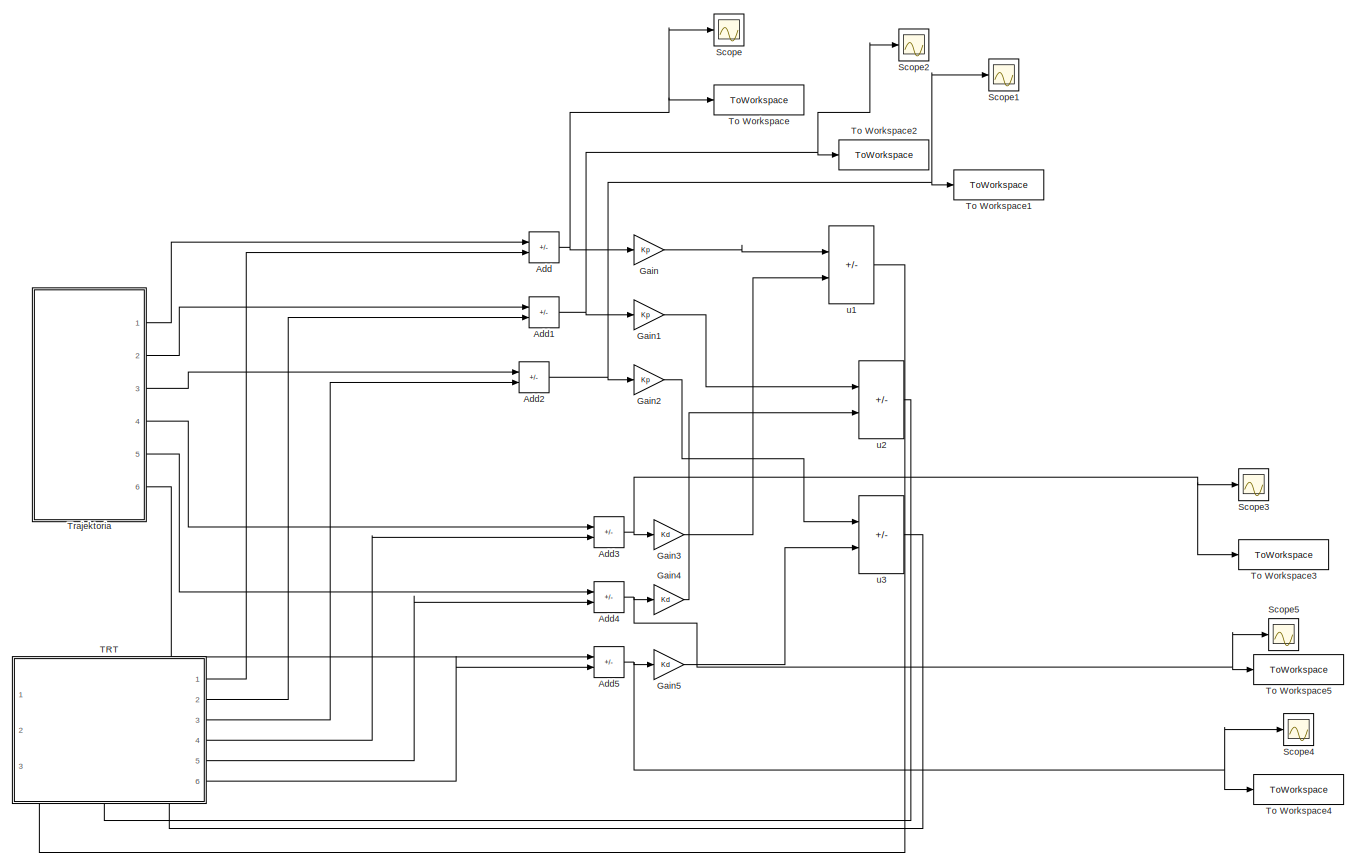
[diagram: root canvas - part 1/1, most of the canvas]
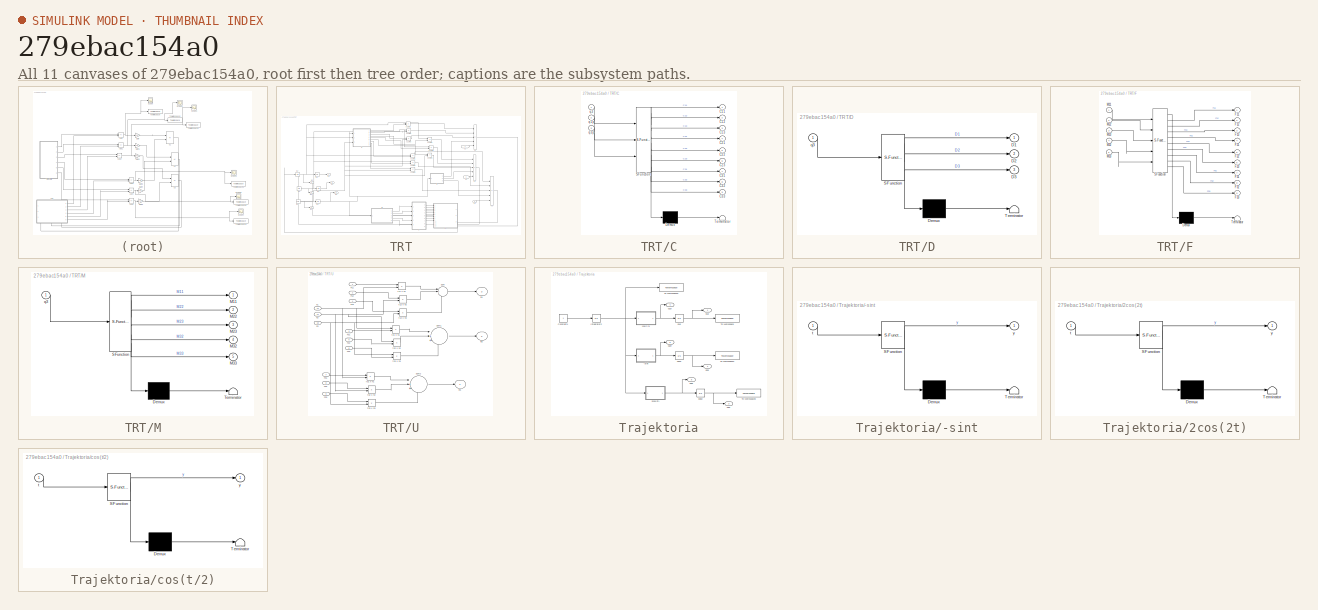
[diagram: thumbnail index - all 11 canvases of the model, root first then tree order]
MODEL slx_279ebac154a0
KIND model
CONFIG AbsTol = auto
CONFIG EnableMultiTasking = off
CONFIG FixedStep = auto
CONFIG MaxStep = auto
CONFIG MinStep = auto
CONFIG RelTol = 1e-10
CONFIG SampleTimeConstraint = Unconstrained
CONFIG SolverName = ode45
CONFIG StartTime = 0.0
CONFIG StopTime = t_stop
BLOCK [Sum] Add
  IconShape = rectangular
  Inputs = -+
  Ports = [2, 1]
BLOCK [Sum] Add1
  IconShape = rectangular
  Inputs = -+
  Ports = [2, 1]
BLOCK [Sum] Add2
  IconShape = rectangular
  Inputs = -+
  Ports = [2, 1]
BLOCK [Sum] Add3
  IconShape = rectangular
  Inputs = -+
  Ports = [2, 1]
BLOCK [Sum] Add4
  IconShape = rectangular
  Inputs = -+
  Ports = [2, 1]
BLOCK [Sum] Add5
  IconShape = rectangular
  Inputs = -+
  Ports = [2, 1]
BLOCK [Gain] Gain
  Gain = Kp
BLOCK [Gain] Gain1
  Gain = Kp
BLOCK [Gain] Gain2
  Gain = Kp
BLOCK [Gain] Gain3
  Gain = Kd
BLOCK [Gain] Gain4
  Gain = Kd
BLOCK [Gain] Gain5
  Gain = Kd
BLOCK [Scope] Scope
  Floating = off
  NumInputPorts = 1
  Ports = [1]
  ScopeSpecificationString = Simulink.scopes.TimeScopeBlockCfg('CurrentConfiguration', extmgr.ConfigurationSet(extmgr.Configuration('Core','General UI',true),extmgr.Configuration('Core','Source UI',true),extmgr.Configuration('Sources','WiredSimulink',true),extmgr.Configuration('Visuals','Time Domain',true,'SerializedDisplays',{struct('MinYLimReal','-0.25002','MaxYLimReal','2.25','YLabelReal','','MinYLimMag','0.00000','MaxYLim...<+1311ch>
BLOCK [Scope] Scope1
  Floating = off
  NumInputPorts = 1
  Ports = [1]
  ScopeSpecificationString = Simulink.scopes.TimeScopeBlockCfg('CurrentConfiguration', extmgr.ConfigurationSet(extmgr.Configuration('Core','General UI',true),extmgr.Configuration('Core','Source UI',true),extmgr.Configuration('Sources','WiredSimulink',true,'DataLoggingVariableName','ScopeData1'),extmgr.Configuration('Visuals','Time Domain',true,'SerializedDisplays',{struct('MinYLimReal','-0.25023','MaxYLimReal','2.25003','YLab...<+1363ch>
BLOCK [Scope] Scope2
  Floating = off
  NumInputPorts = 1
  Ports = [1]
  ScopeSpecificationString = Simulink.scopes.TimeScopeBlockCfg('CurrentConfiguration', extmgr.ConfigurationSet(extmgr.Configuration('Core','General UI',true),extmgr.Configuration('Core','Source UI',true),extmgr.Configuration('Sources','WiredSimulink',true,'DataLoggingVariableName','ScopeData2'),extmgr.Configuration('Visuals','Time Domain',true,'SerializedDisplays',{struct('MinYLimReal','-2.24961','MaxYLimReal','0.24648','YLab...<+1363ch>
BLOCK [Scope] Scope3
  Floating = off
  NumInputPorts = 1
  Ports = [1]
  ScopeSpecificationString = Simulink.scopes.TimeScopeBlockCfg('CurrentConfiguration', extmgr.ConfigurationSet(extmgr.Configuration('Core','General UI',true),extmgr.Configuration('Core','Source UI',true),extmgr.Configuration('Sources','WiredSimulink',true,'DataLoggingVariableName','ScopeData1'),extmgr.Configuration('Visuals','Time Domain',true,'SerializedDisplays',{struct('MinYLimReal','-18.44832','MaxYLimReal','2.05074','YLa...<+1367ch>
BLOCK [Scope] Scope4
  Floating = off
  NumInputPorts = 1
  Ports = [1]
  ScopeSpecificationString = Simulink.scopes.TimeScopeBlockCfg('CurrentConfiguration', extmgr.ConfigurationSet(extmgr.Configuration('Core','General UI',true),extmgr.Configuration('Core','Source UI',true),extmgr.Configuration('Sources','WiredSimulink',true,'DataLoggingVariableName','ScopeData2'),extmgr.Configuration('Visuals','Time Domain',true,'SerializedDisplays',{struct('MinYLimReal','-21.82569','MaxYLimReal','2.44479','YLa...<+1367ch>
BLOCK [Scope] Scope5
  Floating = off
  NumInputPorts = 1
  Ports = [1]
  ScopeSpecificationString = Simulink.scopes.TimeScopeBlockCfg('CurrentConfiguration', extmgr.ConfigurationSet(extmgr.Configuration('Core','General UI',true),extmgr.Configuration('Core','Source UI',true),extmgr.Configuration('Sources','WiredSimulink',true,'DataLoggingVariableName','ScopeData3'),extmgr.Configuration('Visuals','Time Domain',true,'SerializedDisplays',{struct('MinYLimReal','-11.27591','MaxYLimReal','4.52788','YLa...<+1367ch>
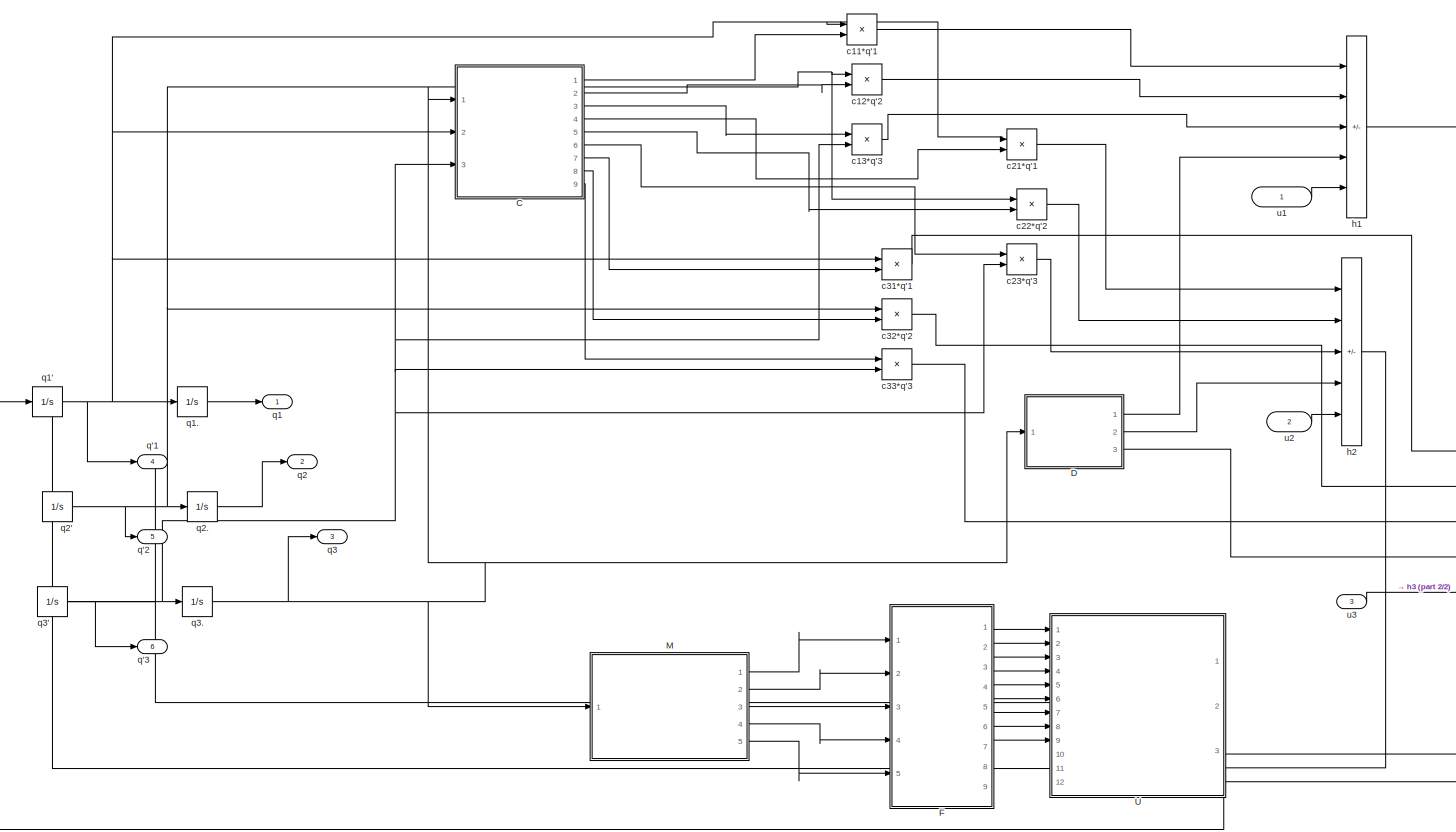
[diagram: TRT - part 1/2, most of the canvas]
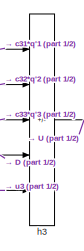
[diagram: TRT - part 2/2, middle right region]
BLOCK [SubSystem] TRT
  PortSchema = {"entries":[{"content":{"sides":[{"content":{"connectorIds":[]},"type":"ConnectorPlacement.EquallySpacedRectSide","uuid":"a13a475c-743e-4b68-af9c-5e746e266b9c"},{"content":{"connectorIds":["Out1","Out2","Out3","Out4","Out5","Out6"],"side":"RIGHT"},"type":"ConnectorPlacement.EquallySpacedRectSide","uuid":"c38df9ec-cc79-4f7b-9920-87d5ccf64580"},{"content":{"connectorIds":[],"side":"TOP"},"type":"Con...<+431ch>
  Ports = [3, 6]
  RequestExecContextInheritance = off
BLOCK [SubSystem] TRT/C
  ErrorFcn = Stateflow.Translate.translate
  PermitHierarchicalResolution = ExplicitOnly
  Ports = [3, 9]
  RequestExecContextInheritance = off
  SFBlockType = MATLAB Function
  TreatAsAtomicUnit = on
BLOCK [Demux] TRT/C/ Demux 
  Outputs = 1
  Ports = [1, 1]
BLOCK [S-Function] TRT/C/ SFunction 
  EnableBusSupport = on
  FunctionName = sf_sfun
  Parameters = l2,l3,m3
  PortCounts = [3 10]
  Ports = [3, 10]
  SFcnIsStateOwnerBlock = off
  SFunctionDeploymentMode = off
  Tag = Stateflow S-Function 3
BLOCK [Terminator] TRT/C/ Terminator 
BLOCK [Outport] TRT/C/C11
BLOCK [Outport] TRT/C/C12
  Port = 2
BLOCK [Outport] TRT/C/C13
  Port = 3
BLOCK [Outport] TRT/C/C21
  Port = 4
BLOCK [Outport] TRT/C/C22
  Port = 5
BLOCK [Outport] TRT/C/C23
  Port = 6
BLOCK [Outport] TRT/C/C31
  Port = 7
BLOCK [Outport] TRT/C/C32
  Port = 8
BLOCK [Outport] TRT/C/C33
  Port = 9
BLOCK [Inport] TRT/C/q1p
  Port = 2
BLOCK [Inport] TRT/C/q3
BLOCK [Inport] TRT/C/q3p
  Port = 3
BLOCK [SubSystem] TRT/D
  ErrorFcn = Stateflow.Translate.translate
  PermitHierarchicalResolution = ExplicitOnly
  Ports = [1, 3]
  RequestExecContextInheritance = off
  SFBlockType = MATLAB Function
  TreatAsAtomicUnit = on
BLOCK [Demux] TRT/D/ Demux 
  Outputs = 1
  Ports = [1, 1]
BLOCK [S-Function] TRT/D/ SFunction 
  EnableBusSupport = on
  FunctionName = sf_sfun
  Parameters = g,l3,m2,m3
  PortCounts = [1 4]
  Ports = [1, 4]
  SFcnIsStateOwnerBlock = off
  SFunctionDeploymentMode = off
  Tag = Stateflow S-Function 4
BLOCK [Terminator] TRT/D/ Terminator 
BLOCK [Outport] TRT/D/D1
BLOCK [Outport] TRT/D/D2
  Port = 2
BLOCK [Outport] TRT/D/D3
  Port = 3
BLOCK [Inport] TRT/D/q3
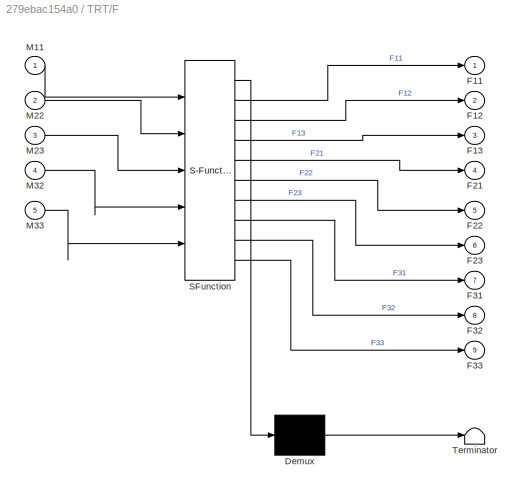
BLOCK [SubSystem] TRT/F
  ErrorFcn = Stateflow.Translate.translate
  PermitHierarchicalResolution = ExplicitOnly
  Ports = [5, 9]
  RequestExecContextInheritance = off
  SFBlockType = MATLAB Function
  TreatAsAtomicUnit = on
BLOCK [Demux] TRT/F/ Demux 
  Outputs = 1
  Ports = [1, 1]
BLOCK [S-Function] TRT/F/ SFunction 
  EnableBusSupport = on
  FunctionName = sf_sfun
  PortCounts = [5 10]
  Ports = [5, 10]
  SFcnIsStateOwnerBlock = off
  SFunctionDeploymentMode = off
  Tag = Stateflow S-Function 7
BLOCK [Terminator] TRT/F/ Terminator 
BLOCK [Outport] TRT/F/F11
BLOCK [Outport] TRT/F/F12
  Port = 2
BLOCK [Outport] TRT/F/F13
  Port = 3
BLOCK [Outport] TRT/F/F21
  Port = 4
BLOCK [Outport] TRT/F/F22
  Port = 5
BLOCK [Outport] TRT/F/F23
  Port = 6
BLOCK [Outport] TRT/F/F31
  Port = 7
BLOCK [Outport] TRT/F/F32
  Port = 8
BLOCK [Outport] TRT/F/F33
  Port = 9
BLOCK [Inport] TRT/F/M11
BLOCK [Inport] TRT/F/M22
  Port = 2
BLOCK [Inport] TRT/F/M23
  Port = 3
BLOCK [Inport] TRT/F/M32
  Port = 4
BLOCK [Inport] TRT/F/M33
  Port = 5
BLOCK [SubSystem] TRT/M
  ErrorFcn = Stateflow.Translate.translate
  PermitHierarchicalResolution = ExplicitOnly
  Ports = [1, 5]
  RequestExecContextInheritance = off
  SFBlockType = MATLAB Function
  TreatAsAtomicUnit = on
BLOCK [Demux] TRT/M/ Demux 
  Outputs = 1
  Ports = [1, 1]
BLOCK [S-Function] TRT/M/ SFunction 
  EnableBusSupport = on
  FunctionName = sf_sfun
  Parameters = l2,l3,m2,m3
  PortCounts = [1 6]
  Ports = [1, 6]
  SFcnIsStateOwnerBlock = off
  SFunctionDeploymentMode = off
  Tag = Stateflow S-Function 2
BLOCK [Terminator] TRT/M/ Terminator 
BLOCK [Outport] TRT/M/M11
BLOCK [Outport] TRT/M/M22
  Port = 2
BLOCK [Outport] TRT/M/M23
  Port = 3
BLOCK [Outport] TRT/M/M32
  Port = 4
BLOCK [Outport] TRT/M/M33
  Port = 5
BLOCK [Inport] TRT/M/q3
BLOCK [SubSystem] TRT/U
  PortSchema = {"entries":[{"content":{"sides":[{"content":{"connectorIds":["In1","In2","In3","In4","In5","In6","In7","In8","In9"]},"type":"ConnectorPlacement.EquallySpacedRectSide","uuid":"30710644-9e06-400a-91a1-da9eb46b634c"},{"content":{"connectorIds":["In10","In11","In12"],"side":"RIGHT"},"type":"ConnectorPlacement.EquallySpacedRectSide","uuid":"450ad47e-e867-455a-81bd-6c2cfcae7014"},{"content":{"connectorI...<+466ch>
  Ports = [12, 3]
  RequestExecContextInheritance = off
BLOCK [Inport] TRT/U/F11
BLOCK [Inport] TRT/U/F12
  Port = 2
BLOCK [Inport] TRT/U/F13
  Port = 4
BLOCK [Inport] TRT/U/F21
  Port = 3
BLOCK [Inport] TRT/U/F22
  Port = 5
BLOCK [Inport] TRT/U/F23
  Port = 6
BLOCK [Inport] TRT/U/F31
  Port = 7
BLOCK [Inport] TRT/U/F32
  Port = 8
BLOCK [Inport] TRT/U/F33
  Port = 9
BLOCK [Sum] TRT/U/Sum
  Inputs = |+++
  Ports = [3, 1]
BLOCK [Sum] TRT/U/Sum1
  Inputs = |+++
  Ports = [3, 1]
BLOCK [Sum] TRT/U/Sum2
  Inputs = |+++
  Ports = [3, 1]
BLOCK [Product] TRT/U/f11 x h1
  Ports = [2, 1]
BLOCK [Product] TRT/U/f12 x h2
  Ports = [2, 1]
BLOCK [Product] TRT/U/f13 x h3
  Ports = [2, 1]
BLOCK [Product] TRT/U/f21 x h1
  Ports = [2, 1]
BLOCK [Product] TRT/U/f22 x h2
  Ports = [2, 1]
BLOCK [Product] TRT/U/f23 x h3
  Ports = [2, 1]
BLOCK [Product] TRT/U/f31 x h1
  Ports = [2, 1]
BLOCK [Product] TRT/U/f32 x h2
  Ports = [2, 1]
BLOCK [Product] TRT/U/f33 x h3
  Ports = [2, 1]
BLOCK [Inport] TRT/U/h1
  Port = 12
BLOCK [Inport] TRT/U/h2
  Port = 11
BLOCK [Inport] TRT/U/h3
  Port = 10
BLOCK [Outport] TRT/U/in1
  Port = 3
BLOCK [Outport] TRT/U/in2
  Port = 2
BLOCK [Outport] TRT/U/in3
BLOCK [Product] TRT/c11*q'1
  Ports = [2, 1]
BLOCK [Product] TRT/c12*q'2
  Ports = [2, 1]
BLOCK [Product] TRT/c13*q'3
  Ports = [2, 1]
BLOCK [Product] TRT/c21*q'1
  Ports = [2, 1]
BLOCK [Product] TRT/c22*q'2
  Ports = [2, 1]
BLOCK [Product] TRT/c23*q'3
  Ports = [2, 1]
BLOCK [Product] TRT/c31*q'1
  Ports = [2, 1]
BLOCK [Product] TRT/c32*q'2
  Ports = [2, 1]
BLOCK [Product] TRT/c33*q'3
  Ports = [2, 1]
BLOCK [Sum] TRT/h1
  IconShape = rectangular
  Inputs = ----+
  Ports = [5, 1]
BLOCK [Sum] TRT/h2
  IconShape = rectangular
  Inputs = ----+
  Ports = [5, 1]
BLOCK [Sum] TRT/h3
  IconShape = rectangular
  Inputs = ----+
  Ports = [5, 1]
BLOCK [Outport] TRT/q'1
  Port = 4
BLOCK [Outport] TRT/q'2
  Port = 5
BLOCK [Outport] TRT/q'3
  Port = 6
BLOCK [Outport] TRT/q1
BLOCK [Integrator] TRT/q1'
  InitialCondition = q1p_0
  Ports = [1, 1]
BLOCK [Integrator] TRT/q1.
  InitialCondition = q1_0
  Ports = [1, 1]
BLOCK [Outport] TRT/q2
  Port = 2
BLOCK [Integrator] TRT/q2'
  InitialCondition = q2p_0
  Ports = [1, 1]
BLOCK [Integrator] TRT/q2.
  InitialCondition = q2_0
  Ports = [1, 1]
BLOCK [Outport] TRT/q3
  Port = 3
BLOCK [Integrator] TRT/q3'
  InitialCondition = q3p_0
  Ports = [1, 1]
BLOCK [Integrator] TRT/q3.
  InitialCondition = q3_0
  Ports = [1, 1]
BLOCK [Inport] TRT/u1
BLOCK [Inport] TRT/u2
  Port = 2
BLOCK [Inport] TRT/u3
  Port = 3
BLOCK [ToWorkspace] To Workspace
  FixptAsFi = on
  MaxDataPoints = inf
  Ports = [1]
  SampleTime = -1
  VariableName = e1
BLOCK [ToWorkspace] To Workspace1
  FixptAsFi = on
  MaxDataPoints = inf
  Ports = [1]
  SampleTime = -1
  VariableName = e3
BLOCK [ToWorkspace] To Workspace2
  FixptAsFi = on
  MaxDataPoints = inf
  Ports = [1]
  SampleTime = -1
  VariableName = e2
BLOCK [ToWorkspace] To Workspace3
  FixptAsFi = on
  MaxDataPoints = inf
  Ports = [1]
  SampleTime = -1
  VariableName = e1p
BLOCK [ToWorkspace] To Workspace4
  FixptAsFi = on
  MaxDataPoints = inf
  Ports = [1]
  SampleTime = -1
  VariableName = e3p
BLOCK [ToWorkspace] To Workspace5
  FixptAsFi = on
  MaxDataPoints = inf
  Ports = [1]
  SampleTime = -1
  VariableName = e2p
BLOCK [SubSystem] Trajektoria
  Ports = [0, 6]
  RequestExecContextInheritance = off
BLOCK [Integrator] Trajektoria/ q1d
  InitialCondition = q1d_0
  Ports = [1, 1]
BLOCK [Integrator] Trajektoria/ q2d1
  InitialCondition = q2d_0
  Ports = [1, 1]
BLOCK [Integrator] Trajektoria/ q3d2
  InitialCondition = q3d_0
  Ports = [1, 1]
BLOCK [SubSystem] Trajektoria/-sint
  ErrorFcn = Stateflow.Translate.translate
  PermitHierarchicalResolution = ExplicitOnly
  Ports = [1, 1]
  RequestExecContextInheritance = off
  SFBlockType = MATLAB Function
  TreatAsAtomicUnit = on
BLOCK [Demux] Trajektoria/-sint/ Demux 
  Outputs = 1
  Ports = [1, 1]
BLOCK [S-Function] Trajektoria/-sint/ SFunction 
  EnableBusSupport = on
  FunctionName = sf_sfun
  PortCounts = [1 2]
  Ports = [1, 2]
  SFcnIsStateOwnerBlock = off
  SFunctionDeploymentMode = off
  Tag = Stateflow S-Function 6
BLOCK [Terminator] Trajektoria/-sint/ Terminator 
BLOCK [Inport] Trajektoria/-sint/t
BLOCK [Outport] Trajektoria/-sint/y
BLOCK [SubSystem] Trajektoria/2cos(2t)
  ErrorFcn = Stateflow.Translate.translate
  PermitHierarchicalResolution = ExplicitOnly
  Ports = [1, 1]
  RequestExecContextInheritance = off
  SFBlockType = MATLAB Function
  TreatAsAtomicUnit = on
BLOCK [Demux] Trajektoria/2cos(2t)/ Demux 
  Outputs = 1
  Ports = [1, 1]
BLOCK [S-Function] Trajektoria/2cos(2t)/ SFunction 
  EnableBusSupport = on
  FunctionName = sf_sfun
  PortCounts = [1 2]
  Ports = [1, 2]
  SFcnIsStateOwnerBlock = off
  SFunctionDeploymentMode = off
  Tag = Stateflow S-Function 1
BLOCK [Terminator] Trajektoria/2cos(2t)/ Terminator 
BLOCK [Inport] Trajektoria/2cos(2t)/t
BLOCK [Outport] Trajektoria/2cos(2t)/y
BLOCK [Constant] Trajektoria/Constant1
BLOCK [Integrator] Trajektoria/Integrator2
  Ports = [1, 1]
BLOCK [ToWorkspace] Trajektoria/To Workspace
  FixptAsFi = on
  MaxDataPoints = inf
  Ports = [1]
  SampleTime = -1
  VariableName = q1ds
BLOCK [ToWorkspace] Trajektoria/To Workspace1
  FixptAsFi = on
  MaxDataPoints = inf
  Ports = [1]
  SampleTime = -1
  VariableName = q2ds
BLOCK [ToWorkspace] Trajektoria/To Workspace2
  FixptAsFi = on
  MaxDataPoints = inf
  Ports = [1]
  SampleTime = -1
  VariableName = t
BLOCK [ToWorkspace] Trajektoria/To Workspace3
  FixptAsFi = on
  MaxDataPoints = inf
  Ports = [1]
  SampleTime = -1
  VariableName = q3ds
BLOCK [SubSystem] Trajektoria/cos(t//2)
  ErrorFcn = Stateflow.Translate.translate
  PermitHierarchicalResolution = ExplicitOnly
  Ports = [1, 1]
  RequestExecContextInheritance = off
  SFBlockType = MATLAB Function
  TreatAsAtomicUnit = on
BLOCK [Demux] Trajektoria/cos(t//2)/ Demux 
  Outputs = 1
  Ports = [1, 1]
BLOCK [S-Function] Trajektoria/cos(t//2)/ SFunction 
  EnableBusSupport = on
  FunctionName = sf_sfun
  PortCounts = [1 2]
  Ports = [1, 2]
  SFcnIsStateOwnerBlock = off
  SFunctionDeploymentMode = off
  Tag = Stateflow S-Function 5
BLOCK [Terminator] Trajektoria/cos(t//2)/ Terminator 
BLOCK [Inport] Trajektoria/cos(t//2)/t
BLOCK [Outport] Trajektoria/cos(t//2)/y
BLOCK [Outport] Trajektoria/q1d
BLOCK [Outport] Trajektoria/q1d'
  Port = 4
BLOCK [Outport] Trajektoria/q2d
  Port = 2
BLOCK [Outport] Trajektoria/q2d'
  Port = 5
BLOCK [Outport] Trajektoria/q3d
  Port = 3
BLOCK [Outport] Trajektoria/q3d'
  Port = 6
BLOCK [Sum] u1
  IconShape = rectangular
  Inputs = --
  Ports = [2, 1]
BLOCK [Sum] u2
  IconShape = rectangular
  Inputs = --
  Ports = [2, 1]
BLOCK [Sum] u3
  IconShape = rectangular
  Inputs = --
  Ports = [2, 1]
NET Add1:1 -> Gain1:1, Scope2:1, To Workspace2:1
NET Add2:1 -> Gain2:1, Scope1:1, To Workspace1:1
NET Add3:1 -> Gain3:1, Scope3:1, To Workspace3:1
NET Add4:1 -> Gain4:1, Scope5:1, To Workspace5:1
NET Add5:1 -> Gain5:1, Scope4:1, To Workspace4:1
NET Add:1 -> Gain:1, Scope:1, To Workspace:1
LINE Gain1:1 -> u2:1
LINE Gain2:1 -> u3:1
LINE Gain3:1 -> u1:2
LINE Gain4:1 -> u2:2
LINE Gain5:1 -> u3:2
LINE Gain:1 -> u1:1
LINE TRT/C:1 -> TRT/c11*q'1:2
LINE TRT/C:2 -> TRT/c12*q'2:2
LINE TRT/C:3 -> TRT/c13*q'3:1
LINE TRT/C:4 -> TRT/c21*q'1:2
LINE TRT/C:5 -> TRT/c22*q'2:2
LINE TRT/C:6 -> TRT/c23*q'3:1
LINE TRT/C:7 -> TRT/c31*q'1:2
LINE TRT/C:8 -> TRT/c32*q'2:2
LINE TRT/C:9 -> TRT/c33*q'3:1
LINE TRT/D:1 -> TRT/h1:4
LINE TRT/D:2 -> TRT/h2:4
LINE TRT/D:3 -> TRT/h3:4
LINE TRT/F:1 -> TRT/U:1
LINE TRT/F:2 -> TRT/U:2
LINE TRT/F:3 -> TRT/U:3
LINE TRT/F:4 -> TRT/U:4
LINE TRT/F:5 -> TRT/U:5
LINE TRT/F:6 -> TRT/U:6
LINE TRT/F:7 -> TRT/U:7
LINE TRT/F:8 -> TRT/U:8
LINE TRT/F:9 -> TRT/U:9
LINE TRT/M:1 -> TRT/F:1
LINE TRT/M:2 -> TRT/F:2
LINE TRT/M:3 -> TRT/F:3
LINE TRT/M:4 -> TRT/F:4
LINE TRT/M:5 -> TRT/F:5
LINE TRT/U/F11:1 -> TRT/U/f11 x h1:1
LINE TRT/U/F12:1 -> TRT/U/f12 x h2:1
LINE TRT/U/F13:1 -> TRT/U/f13 x h3:1
LINE TRT/U/F21:1 -> TRT/U/f21 x h1:2
LINE TRT/U/F22:1 -> TRT/U/f22 x h2:2
LINE TRT/U/F23:1 -> TRT/U/f23 x h3:2
LINE TRT/U/F31:1 -> TRT/U/f31 x h1:1
LINE TRT/U/F32:1 -> TRT/U/f32 x h2:1
LINE TRT/U/F33:1 -> TRT/U/f33 x h3:1
LINE TRT/U/Sum1:1 -> TRT/U/in2:1
LINE TRT/U/Sum2:1 -> TRT/U/in3:1
LINE TRT/U/Sum:1 -> TRT/U/in1:1
LINE TRT/U/f11 x h1:1 -> TRT/U/Sum:1
LINE TRT/U/f12 x h2:1 -> TRT/U/Sum:2
LINE TRT/U/f13 x h3:1 -> TRT/U/Sum:3
LINE TRT/U/f21 x h1:1 -> TRT/U/Sum1:1
LINE TRT/U/f22 x h2:1 -> TRT/U/Sum1:2
LINE TRT/U/f23 x h3:1 -> TRT/U/Sum1:3
LINE TRT/U/f31 x h1:1 -> TRT/U/Sum2:1
LINE TRT/U/f32 x h2:1 -> TRT/U/Sum2:2
LINE TRT/U/f33 x h3:1 -> TRT/U/Sum2:3
NET TRT/U/h1:1 -> TRT/U/f11 x h1:2, TRT/U/f21 x h1:1, TRT/U/f31 x h1:2
NET TRT/U/h2:1 -> TRT/U/f12 x h2:2, TRT/U/f22 x h2:1, TRT/U/f32 x h2:2
NET TRT/U/h3:1 -> TRT/U/f13 x h3:2, TRT/U/f23 x h3:1, TRT/U/f33 x h3:2
LINE TRT/U:1 -> TRT/q3':1
LINE TRT/U:2 -> TRT/q2':1
LINE TRT/U:3 -> TRT/q1':1
LINE TRT/c11*q'1:1 -> TRT/h1:1
LINE TRT/c12*q'2:1 -> TRT/h1:2
LINE TRT/c13*q'3:1 -> TRT/h1:3
LINE TRT/c21*q'1:1 -> TRT/h2:1
LINE TRT/c22*q'2:1 -> TRT/h2:2
LINE TRT/c23*q'3:1 -> TRT/h2:3
LINE TRT/c31*q'1:1 -> TRT/h3:1
LINE TRT/c32*q'2:1 -> TRT/h3:2
LINE TRT/c33*q'3:1 -> TRT/h3:3
LINE TRT/h1:1 -> TRT/U:12
LINE TRT/h2:1 -> TRT/U:11
LINE TRT/h3:1 -> TRT/U:10
NET TRT/q1':1 -> TRT/C:2, TRT/c11*q'1:1, TRT/c21*q'1:1, TRT/c31*q'1:1, TRT/q'1:1, TRT/q1.:1
LINE TRT/q1.:1 -> TRT/q1:1
NET TRT/q2':1 -> TRT/c12*q'2:1, TRT/c22*q'2:1, TRT/c32*q'2:1, TRT/q'2:1, TRT/q2.:1
LINE TRT/q2.:1 -> TRT/q2:1
NET TRT/q3':1 -> TRT/C:3, TRT/c13*q'3:2, TRT/c23*q'3:2, TRT/c33*q'3:2, TRT/q'3:1, TRT/q3.:1
NET TRT/q3.:1 -> TRT/C:1, TRT/D:1, TRT/M:1, TRT/q3:1
LINE TRT/u1:1 -> TRT/h1:5
LINE TRT/u2:1 -> TRT/h2:5
LINE TRT/u3:1 -> TRT/h3:5
LINE TRT:1 -> Add:2
LINE TRT:2 -> Add1:2
LINE TRT:3 -> Add2:2
LINE TRT:4 -> Add3:2
LINE TRT:5 -> Add4:2
LINE TRT:6 -> Add5:2
NET Trajektoria/ q1d:1 -> Trajektoria/To Workspace:1, Trajektoria/q1d:1
NET Trajektoria/ q2d1:1 -> Trajektoria/To Workspace1:1, Trajektoria/q2d:1
NET Trajektoria/ q3d2:1 -> Trajektoria/To Workspace3:1, Trajektoria/q3d:1
NET Trajektoria/-sint:1 -> Trajektoria/ q2d1:1, Trajektoria/q2d':1
NET Trajektoria/2cos(2t):1 -> Trajektoria/ q3d2:1, Trajektoria/q3d':1
LINE Trajektoria/Constant1:1 -> Trajektoria/Integrator2:1
NET Trajektoria/Integrator2:1 -> Trajektoria/-sint:1, Trajektoria/2cos(2t):1, Trajektoria/To Workspace2:1, Trajektoria/cos(t//2):1
NET Trajektoria/cos(t//2):1 -> Trajektoria/ q1d:1, Trajektoria/q1d':1
LINE Trajektoria:1 -> Add:1
LINE Trajektoria:2 -> Add1:1
LINE Trajektoria:3 -> Add2:1
LINE Trajektoria:4 -> Add3:1
LINE Trajektoria:5 -> Add4:1
LINE Trajektoria:6 -> Add5:1
LINE u1:1 -> TRT:1
LINE u2:1 -> TRT:2
LINE u3:1 -> TRT:3
note: NET lines group one-source signal fan-out (src -> all destinations, sorted); 1:1 wires keep LINE
CHART TRT/F states=1 transitions=1
  STATE_LABEL 'eML_blk_kernel()'
  STATE_LABEL 'SCRIPT:\nfunction [F11,F12,F13,F21,F22,F23,F31,F32,F33] =fcn(M11, M22, M23, M32, M33)\n%(wiersz, kolumna)\n%M11, M22,  M33, M23, M32\n%% output\n%M=[0,0,0;0,0,0;0,0,0];\nM = [M11, 0, 0;\n     0, M22, M23;\n     0,M32, M33];\n\nF1 = inv(M);\nF11 = F1(1,1);\nF12 = F1(1,2);\nF13 = F1(1,3);\nF21 = F1(2,1);\nF22 = F1(2,2);\nF23 = F1(2,3);\nF31 = F1(3,1);\nF32 = F1(3,2);\nF33 = F1(3,3);\n'
CHART Trajektoria/2cos(2t) states=1 transitions=1
  STATE_LABEL 'eML_blk_kernel()'
  STATE_LABEL 'SCRIPT:\nfunction y = fcn(t)\n\ny = 2*cos(2*t);\n'
CHART TRT/M states=1 transitions=1
  STATE_LABEL 'eML_blk_kernel()'
  STATE_LABEL 'SCRIPT:\nfunction [M11, M22, M23, M32, M33] =fcn(l2,l3, m2, m3, q3)\n%(wiersz, kolumna)\n%M11, M22,  M33, M23, M32\n%% output\n%M=[0,0,0;0,0,0;0,0,0];\nM11 = (1/3)*m2*(l2^2)+m3*((l2^2)+(1/3)*(l3^2)*(cos(q3)^2) + l2*l3*cos(3));\nM22 = m2+m3;\nM23 = (1/2)*m3*l2*l3*cos(q3);\nM32 = (1/2)*m3*l2*l3*cos(q3);\nM33 = (1/3)*m3*(l3^2);\n%M0=0;'
CHART TRT/C states=1 transitions=1
  STATE_LABEL 'eML_blk_kernel()'
  STATE_LABEL 'SCRIPT:\nfunction [C11,C12, C13,C21,C22,C23, C31,C32,C33] =fcn( q3, q1p, q3p, m3, l2, l3)\n%(wiersz, kolumna)\n%M11, M22,  M33, M23, M32\n%% output\n%M=[0,0,0;0,0,0;0,0,0];\nC11 = -q3p*((1/2)*m3*l2*l3*sin(q3) + (1/3)*m3*(l3^2)*sin(q3)*cos(q3));\nC13 = -q1p*((1/2)*m3*l2*l3*sin(q3) + (1/3)*m3*(l3^2)*sin(q3)*cos(q3));\nC23 = -q3p*(1/2)*m3*(l3*l2)*sin(q3)*cos(q3);\nC31 = q1p*((1/2)*m3*l2*l3*sin(q3) + (1/3)*m3*...<+79ch>'
CHART TRT/D states=1 transitions=1
  STATE_LABEL 'eML_blk_kernel()'
  STATE_LABEL 'SCRIPT:\nfunction [D1, D2, D3] =fcn(q3,m2,m3, l3, g)\n%(wiersz, kolumna)\n%M11, M22,  M33, M23, M32\n%% output\n%M=[0,0,0;0,0,0;0,0,0];\nD1 = 0;\nD2 = (m2+m3)*g;\nD3 = (1/2)*g*m3*l3*cos(q3);'
CHART Trajektoria/cos(t//2) states=1 transitions=1
  STATE_LABEL 'eML_blk_kernel()'
  STATE_LABEL 'SCRIPT:\nfunction y = fcn(t)\n\ny = cos(t/2);\n'
CHART Trajektoria/-sint states=1 transitions=1
  STATE_LABEL 'eML_blk_kernel()'
  STATE_LABEL 'SCRIPT:\nfunction y = fcn(t)\n\ny = -sin(t);\n'
CHART  states=0 transitions=0
CHART  states=0 transitions=0
CHART  states=0 transitions=0
CHART  states=0 transitions=0
CHART  states=0 transitions=0
CHART  states=0 transitions=0
CHART  states=0 transitions=0
